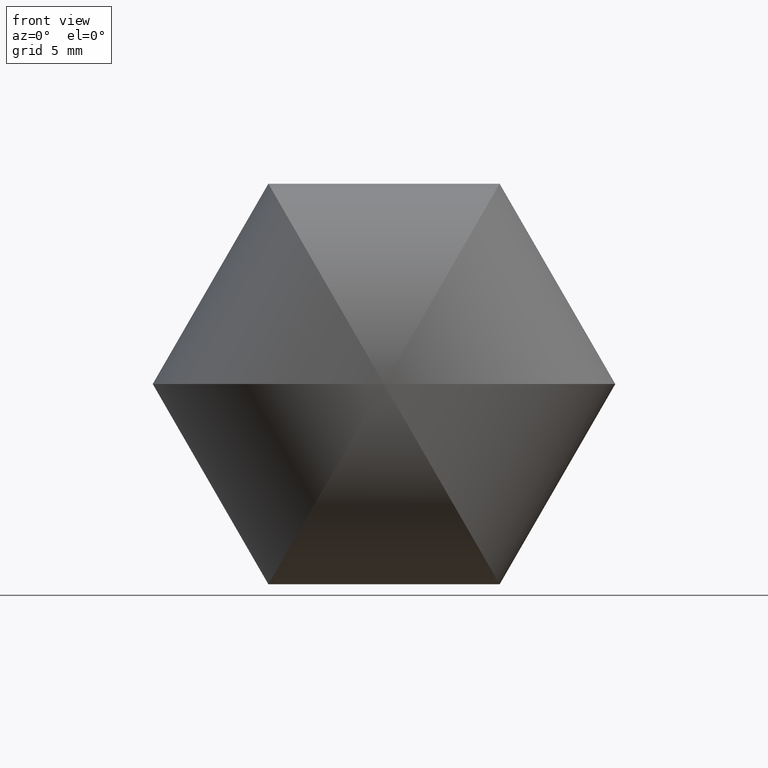
[diagram: clean part render]
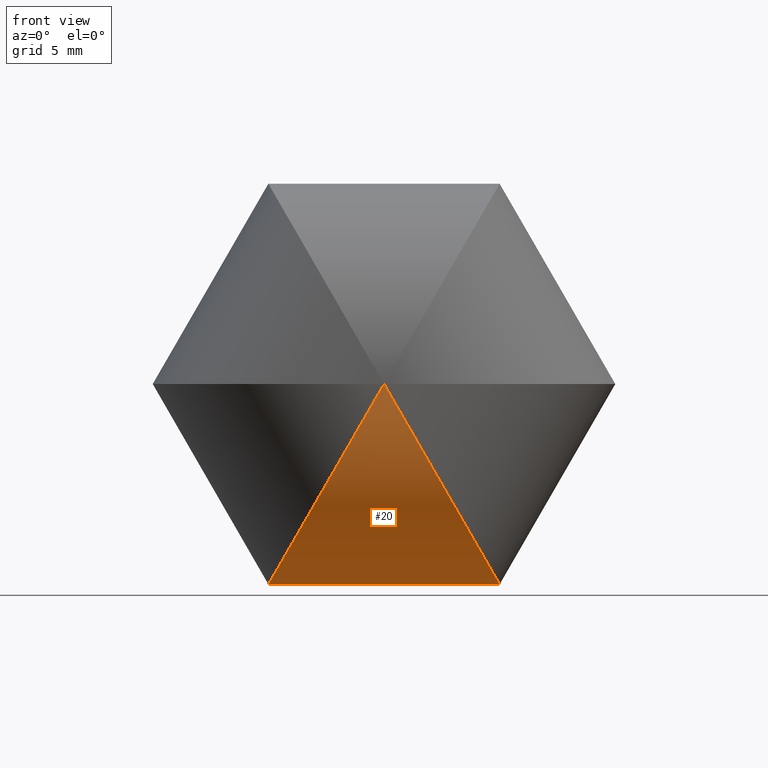
[diagram: same view with one face highlighted and labeled with its STEP entity id]
A machine part, front view. The second image highlights one B-rep face of the part: STEP entity #20.
In plain terms, the highlighted cylindrical surface (partial cylindrical patch) has radius 12.5 mm, axis along (1, 0, 0).
Its self-contained STEP definition (entity closure, byte-faithful):
#5 = VERTEX_POINT ( 'NONE', #180 ) ;
#6 = EDGE_CURVE ( 'NONE', #71, #5, #264, .T. ) ;
#8 = CYLINDRICAL_SURFACE ( 'NONE', #141, 12.50000000000000000 ) ;
#20 = ADVANCED_FACE ( 'NONE', ( #153 ), #8, .T. ) ;
#26 = CARTESIAN_POINT ( 'NONE',  ( 14.43375672974068102, 12.50000000000000533, -25.00000000000000000 ) ) ;
#32 = ORIENTED_EDGE ( 'NONE', *, *, #6, .T. ) ;
#44 = EDGE_CURVE ( 'NONE', #5, #71, #142, .T. ) ;
#47 = CARTESIAN_POINT ( 'NONE',  ( 0.000000000000000000, 0.000000000000000000, 0.000000000000000000 ) ) ;
#52 = CARTESIAN_POINT ( 'NONE',  ( -14.43375672974055668, -12.50000000000000533, -25.00000000000000000 ) ) ;
#71 = VERTEX_POINT ( 'NONE', #164 ) ;
#73 = CARTESIAN_POINT ( 'NONE',  ( -3.469446951953614189E-15, 12.50000000000000000, 0.000000000000000000 ) ) ;
#75 = CARTESIAN_POINT ( 'NONE',  ( 3.469446951953614189E-15, -12.50000000000000000, 1.734723475976807094E-15 ) ) ;
#95 = DIRECTION ( 'NONE',  ( 0.000000000000000000, 0.000000000000000000, -1.000000000000000000 ) ) ;
#97 = CARTESIAN_POINT ( 'NONE',  ( 3.469446951953614189E-15, -12.50000000000000000, 1.734723475976807094E-15 ) ) ;
#139 = EDGE_LOOP ( 'NONE', ( #221, #32 ) ) ;
#141 = AXIS2_PLACEMENT_3D ( 'NONE', #47, #255, #95 ) ;
#142 =( BOUNDED_CURVE ( )  B_SPLINE_CURVE ( 3, ( #97, #52, #181, #177 ),
 .UNSPECIFIED., .F., .F. ) 
 B_SPLINE_CURVE_WITH_KNOTS ( ( 4, 4 ),
 ( 1.570796326794895892, 4.712388980384688786 ),
 .UNSPECIFIED. ) 
 CURVE ( )  GEOMETRIC_REPRESENTATION_ITEM ( )  RATIONAL_B_SPLINE_CURVE ( ( 1.000000000000000000, 0.3333333333333333703, 0.3333333333333333703, 1.000000000000000000 ) ) 
 REPRESENTATION_ITEM ( '' )  );
#153 = FACE_OUTER_BOUND ( 'NONE', #139, .T. ) ;
#164 = CARTESIAN_POINT ( 'NONE',  ( -3.469446951953614189E-15, 12.50000000000000000, 0.000000000000000000 ) ) ;
#177 = CARTESIAN_POINT ( 'NONE',  ( -3.469446951953614189E-15, 12.50000000000000000, 0.000000000000000000 ) ) ;
#180 = CARTESIAN_POINT ( 'NONE',  ( 3.469446951953614189E-15, -12.50000000000000000, 1.734723475976807094E-15 ) ) ;
#181 = CARTESIAN_POINT ( 'NONE',  ( -14.43375672974056911, 12.49999999999998934, -25.00000000000001066 ) ) ;
#217 = CARTESIAN_POINT ( 'NONE',  ( 14.43375672974068458, -12.49999999999999467, -25.00000000000000000 ) ) ;
#221 = ORIENTED_EDGE ( 'NONE', *, *, #44, .T. ) ;
#255 = DIRECTION ( 'NONE',  ( 1.000000000000000000, 0.000000000000000000, 0.000000000000000000 ) ) ;
#264 =( BOUNDED_CURVE ( )  B_SPLINE_CURVE ( 3, ( #73, #26, #217, #75 ),
 .UNSPECIFIED., .F., .T. ) 
 B_SPLINE_CURVE_WITH_KNOTS ( ( 4, 4 ),
 ( 4.712388980384689674, 7.853981633974482790 ),
 .UNSPECIFIED. ) 
 CURVE ( )  GEOMETRIC_REPRESENTATION_ITEM ( )  RATIONAL_B_SPLINE_CURVE ( ( 1.000000000000000000, 0.3333333333333333703, 0.3333333333333333703, 1.000000000000000000 ) ) 
 REPRESENTATION_ITEM ( '' )  );